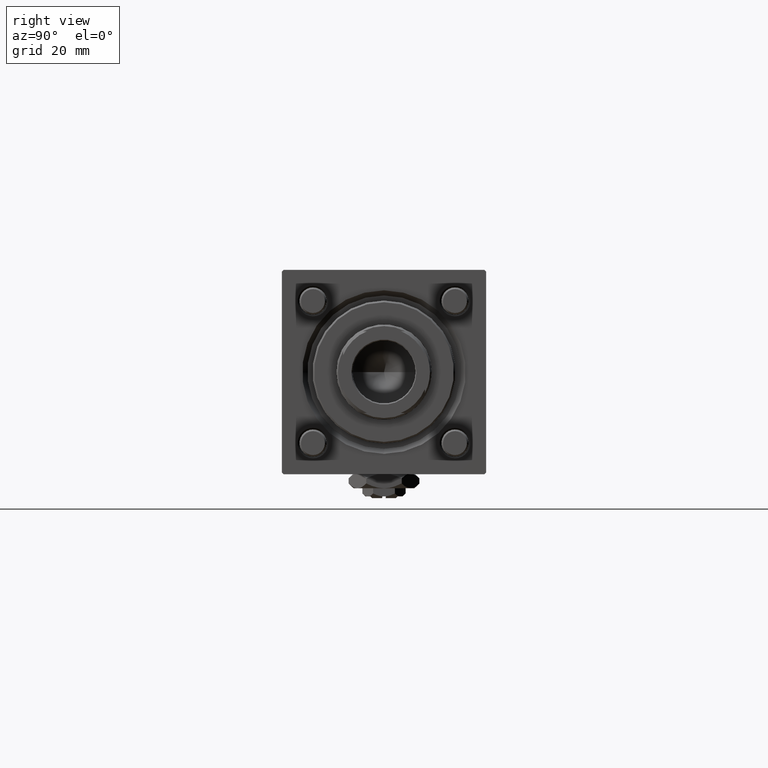
[diagram: clean part render]
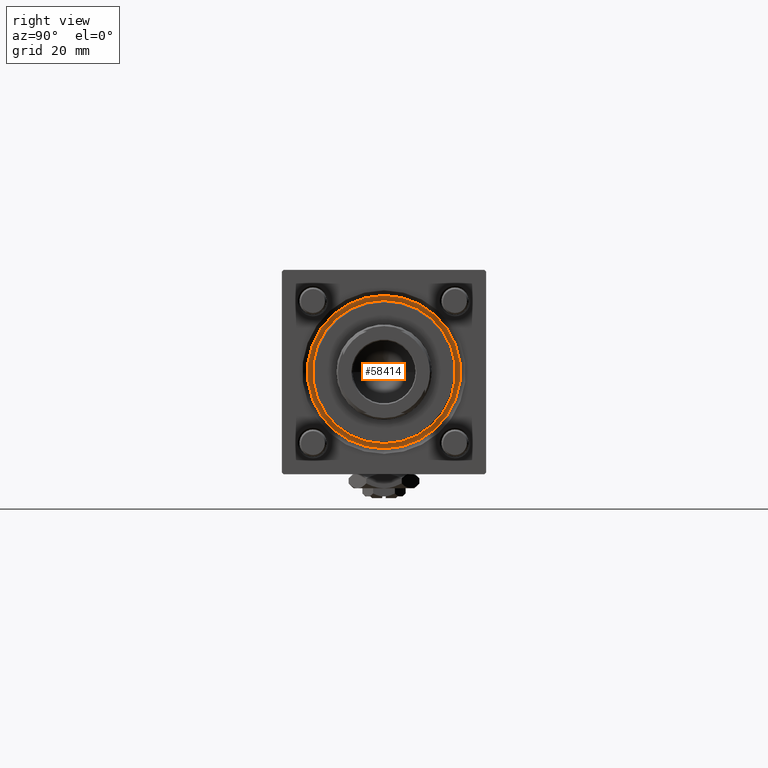
[diagram: same view with one face highlighted and labeled with its STEP entity id]
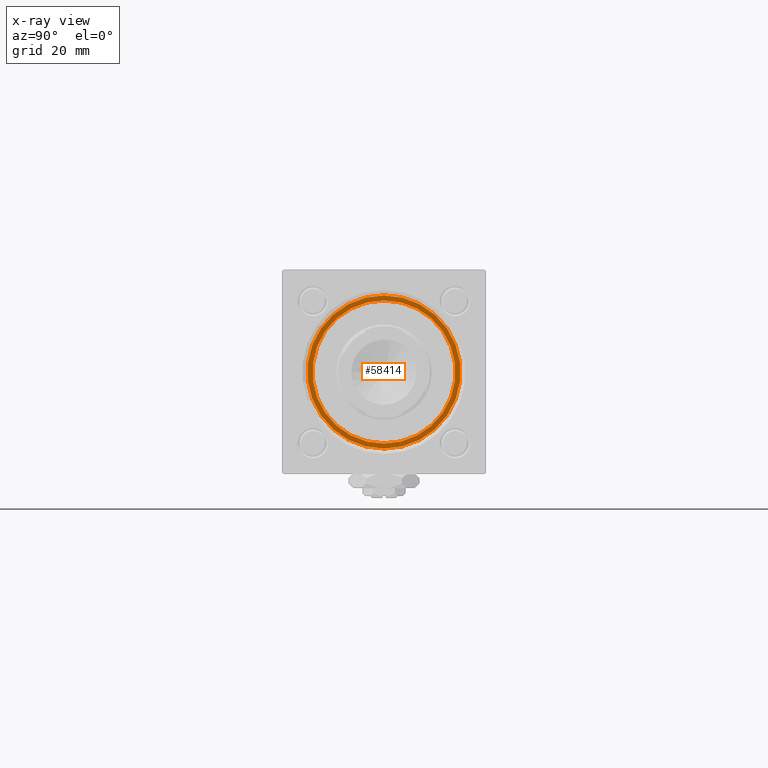
[diagram: x-ray of the same camera — body ghosted, the highlighted face saturated]
A machine part, right view. The second image highlights one B-rep face of the part: STEP entity #58414.
The next image is the same camera in x-ray: the body ghosted, the highlighted face saturated — about 0% of this face is hidden behind the body in this view.
In plain terms, the highlighted planar face has unit normal (1, 0, 0).
Its self-contained STEP definition (entity closure, byte-faithful):
#1074 = DIRECTION ( 'NONE',  ( 0.000000000000000000, 0.000000000000000000, 1.000000000000000000 ) ) ;
#4215 = EDGE_LOOP ( 'NONE', ( #35952, #23218 ) ) ;
#4704 = CARTESIAN_POINT ( 'NONE',  ( 22.50000000000000355, 2.755455298081545172E-15, 28.69999999999999929 ) ) ;
#5276 = EDGE_LOOP ( 'NONE', ( #5964, #38537 ) ) ;
#5335 = AXIS2_PLACEMENT_3D ( 'NONE', #33089, #29225, #24783 ) ;
#5618 = DIRECTION ( 'NONE',  ( 0.000000000000000000, 0.000000000000000000, 1.000000000000000000 ) ) ;
#5964 = ORIENTED_EDGE ( 'NONE', *, *, #45658, .T. ) ;
#6193 = CARTESIAN_POINT ( 'NONE',  ( 0.000000000000000000, 0.000000000000000000, 28.69999999999999929 ) ) ;
#7039 = VERTEX_POINT ( 'NONE', #4704 ) ;
#10340 = VERTEX_POINT ( 'NONE', #30591 ) ;
#11023 = CIRCLE ( 'NONE', #5335, 22.50000000000000355 ) ;
#12750 = CARTESIAN_POINT ( 'NONE',  ( 0.000000000000000000, 0.000000000000000000, 28.69999999999999929 ) ) ;
#14421 = VERTEX_POINT ( 'NONE', #57330 ) ;
#17995 = DIRECTION ( 'NONE',  ( 1.000000000000000000, 0.000000000000000000, 0.000000000000000000 ) ) ;
#18954 = DIRECTION ( 'NONE',  ( 1.000000000000000000, 0.000000000000000000, -0.000000000000000000 ) ) ;
#20818 = CARTESIAN_POINT ( 'NONE',  ( 0.000000000000000000, 0.000000000000000000, 28.69999999999999929 ) ) ;
#23218 = ORIENTED_EDGE ( 'NONE', *, *, #49192, .F. ) ;
#24783 = DIRECTION ( 'NONE',  ( 1.000000000000000000, 0.000000000000000000, 0.000000000000000000 ) ) ;
#28298 = VERTEX_POINT ( 'NONE', #28586 ) ;
#28586 = CARTESIAN_POINT ( 'NONE',  ( 21.00000000000000000, 2.571758278209441661E-15, 28.69999999999999929 ) ) ;
#29225 = DIRECTION ( 'NONE',  ( 0.000000000000000000, 0.000000000000000000, 1.000000000000000000 ) ) ;
#30591 = CARTESIAN_POINT ( 'NONE',  ( -21.00000000000000000, 0.000000000000000000, 28.69999999999999929 ) ) ;
#32258 = FACE_BOUND ( 'NONE', #4215, .T. ) ;
#33089 = CARTESIAN_POINT ( 'NONE',  ( 0.000000000000000000, 0.000000000000000000, 28.69999999999999929 ) ) ;
#35952 = ORIENTED_EDGE ( 'NONE', *, *, #39263, .F. ) ;
#36618 = DIRECTION ( 'NONE',  ( 0.000000000000000000, 0.000000000000000000, 1.000000000000000000 ) ) ;
#38537 = ORIENTED_EDGE ( 'NONE', *, *, #51892, .T. ) ;
#38875 = DIRECTION ( 'NONE',  ( 0.000000000000000000, 0.000000000000000000, 1.000000000000000000 ) ) ;
#39263 = EDGE_CURVE ( 'NONE', #10340, #28298, #51572, .T. ) ;
#39466 = CIRCLE ( 'NONE', #48951, 22.50000000000000355 ) ;
#41999 = PLANE ( 'NONE',  #48050 ) ;
#43338 = CIRCLE ( 'NONE', #50946, 21.00000000000000000 ) ;
#45658 = EDGE_CURVE ( 'NONE', #14421, #7039, #39466, .T. ) ;
#46081 = CARTESIAN_POINT ( 'NONE',  ( 0.000000000000000000, 0.000000000000000000, 28.69999999999999929 ) ) ;
#46180 = FACE_OUTER_BOUND ( 'NONE', #5276, .T. ) ;
#48050 = AXIS2_PLACEMENT_3D ( 'NONE', #6193, #5618, #18954 ) ;
#48951 = AXIS2_PLACEMENT_3D ( 'NONE', #12750, #36618, #54988 ) ;
#49192 = EDGE_CURVE ( 'NONE', #28298, #10340, #43338, .T. ) ;
#50946 = AXIS2_PLACEMENT_3D ( 'NONE', #20818, #38875, #52809 ) ;
#51572 = CIRCLE ( 'NONE', #57226, 21.00000000000000000 ) ;
#51892 = EDGE_CURVE ( 'NONE', #7039, #14421, #11023, .T. ) ;
#52809 = DIRECTION ( 'NONE',  ( 1.000000000000000000, 0.000000000000000000, 0.000000000000000000 ) ) ;
#54988 = DIRECTION ( 'NONE',  ( 1.000000000000000000, 0.000000000000000000, 0.000000000000000000 ) ) ;
#57226 = AXIS2_PLACEMENT_3D ( 'NONE', #46081, #1074, #17995 ) ;
#57330 = CARTESIAN_POINT ( 'NONE',  ( -22.50000000000000355, 0.000000000000000000, 28.69999999999999929 ) ) ;
#58414 = ADVANCED_FACE ( 'NONE', ( #32258, #46180 ), #41999, .T. ) ;